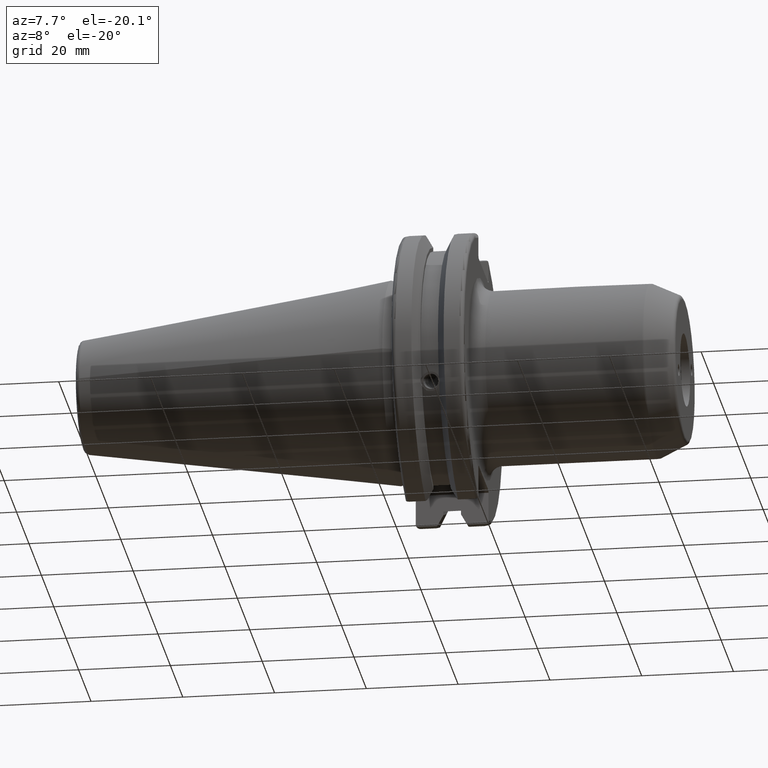
[diagram: clean part render]
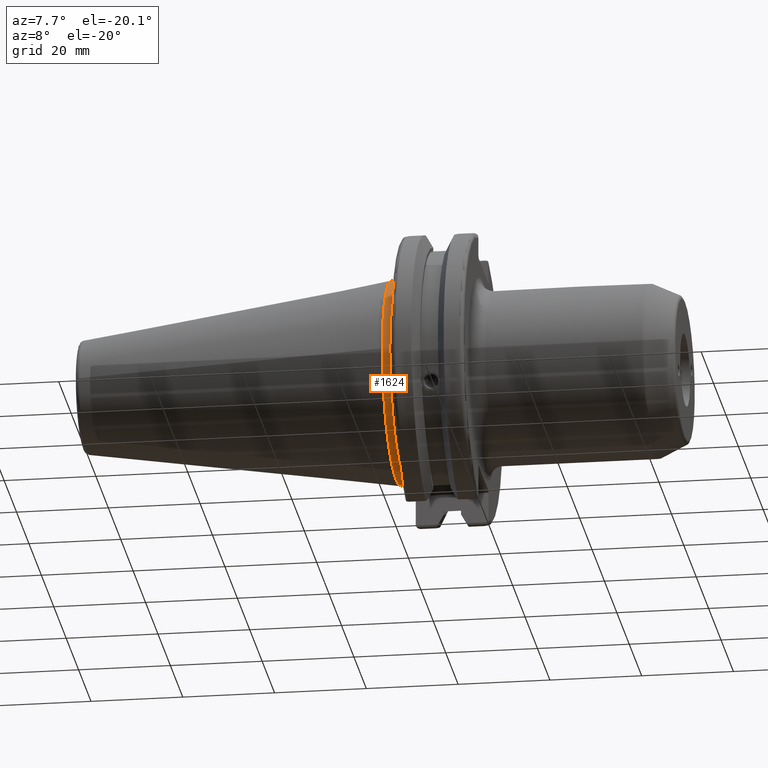
[diagram: same view with one face highlighted and labeled with its STEP entity id]
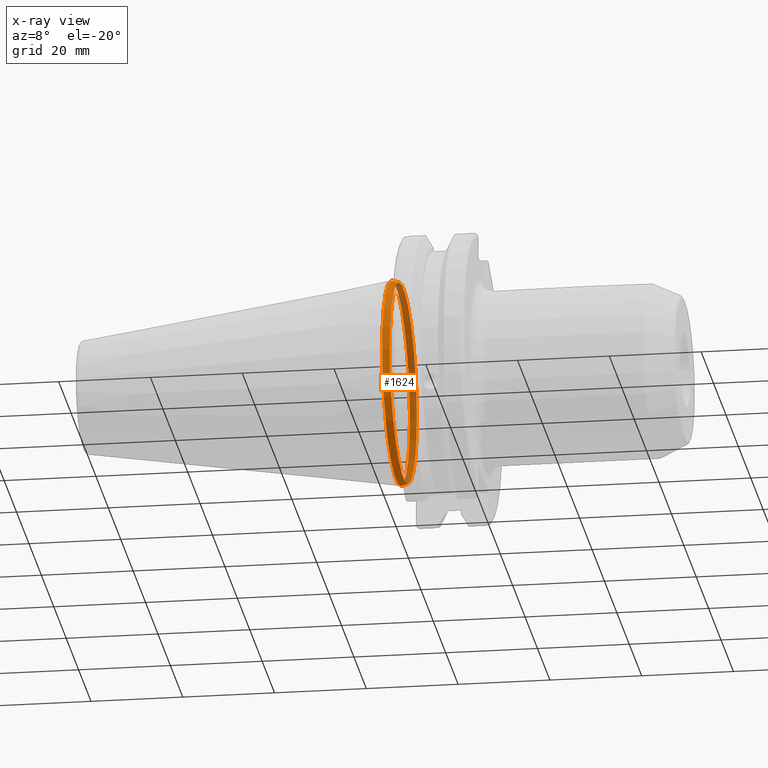
[diagram: x-ray of the same camera — body ghosted, the highlighted face saturated]
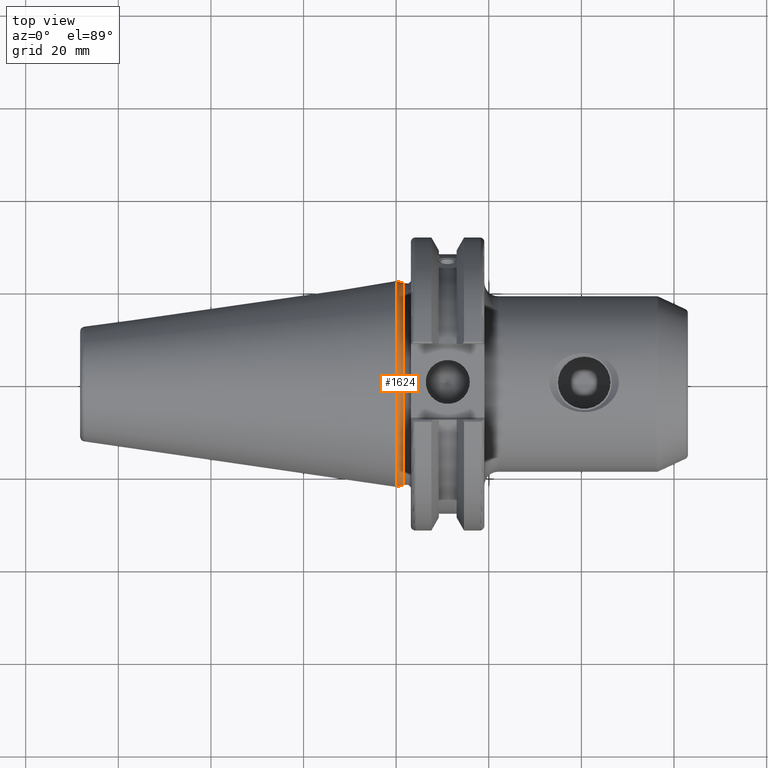
[diagram: same view with one face highlighted and labeled with its STEP entity id]
A machine part, auxiliary view. The second image highlights one B-rep face of the part: STEP entity #1624.
The next image is the same camera in x-ray: the body ghosted, the highlighted face saturated — about 48% of this face is hidden behind the body in this view.
A second angle (top view) of the same face is appended — the face is thin or edge-on in the first view.
In plain terms, the highlighted conical surface has half-angle 15 deg.
Its self-contained STEP definition (entity closure, byte-faithful):
#271=FACE_OUTER_BOUND('',#383,.T.);
#383=EDGE_LOOP('',(#1506,#1507,#1508,#1509));
#481=LINE('',#3153,#577);
#577=VECTOR('',#2290,22.0125);
#627=CIRCLE('',#1767,21.8);
#638=CIRCLE('',#1793,22.225);
#767=VERTEX_POINT('',#2877);
#797=VERTEX_POINT('',#3080);
#963=EDGE_CURVE('',#767,#767,#627,.T.);
#1012=EDGE_CURVE('',#797,#797,#638,.T.);
#1044=EDGE_CURVE('',#767,#797,#481,.T.);
#1506=ORIENTED_EDGE('',*,*,#963,.F.);
#1507=ORIENTED_EDGE('',*,*,#1044,.T.);
#1508=ORIENTED_EDGE('',*,*,#1012,.T.);
#1509=ORIENTED_EDGE('',*,*,#1044,.F.);
#1534=CONICAL_SURFACE('',#1829,22.0125,0.261799387799148);
#1624=ADVANCED_FACE('',(#271),#1534,.T.);
#1767=AXIS2_PLACEMENT_3D('',#2879,#2129,#2130);
#1793=AXIS2_PLACEMENT_3D('',#3081,#2197,#2198);
#1829=AXIS2_PLACEMENT_3D('',#3152,#2288,#2289);
#2129=DIRECTION('center_axis',(1.,0.,0.));
#2130=DIRECTION('ref_axis',(0.,0.,-1.));
#2197=DIRECTION('center_axis',(1.,0.,0.));
#2198=DIRECTION('ref_axis',(0.,0.,-1.));
#2288=DIRECTION('center_axis',(-1.,0.,0.));
#2289=DIRECTION('ref_axis',(0.,1.,0.));
#2290=DIRECTION('',(-0.965925826289069,-0.258819045102519,-3.16961915143175E-17));
#2877=CARTESIAN_POINT('',(1.58612159321676,-21.8,-2.66973002214123E-15));
#2879=CARTESIAN_POINT('Origin',(1.58612159321676,0.,0.));
#3080=CARTESIAN_POINT('',(0.,-22.225,-2.72177751110499E-15));
#3081=CARTESIAN_POINT('Origin',(0.,0.,0.));
#3152=CARTESIAN_POINT('Origin',(0.793060796608382,0.,0.));
#3153=CARTESIAN_POINT('',(0.793060796608382,-22.0125,-2.69575376662311E-15));